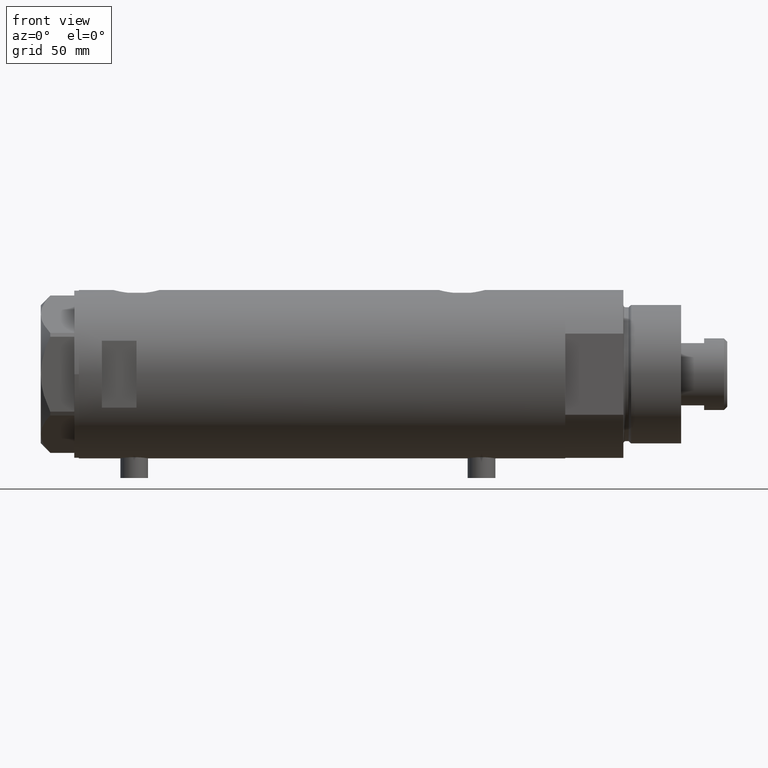
[diagram: clean part render]
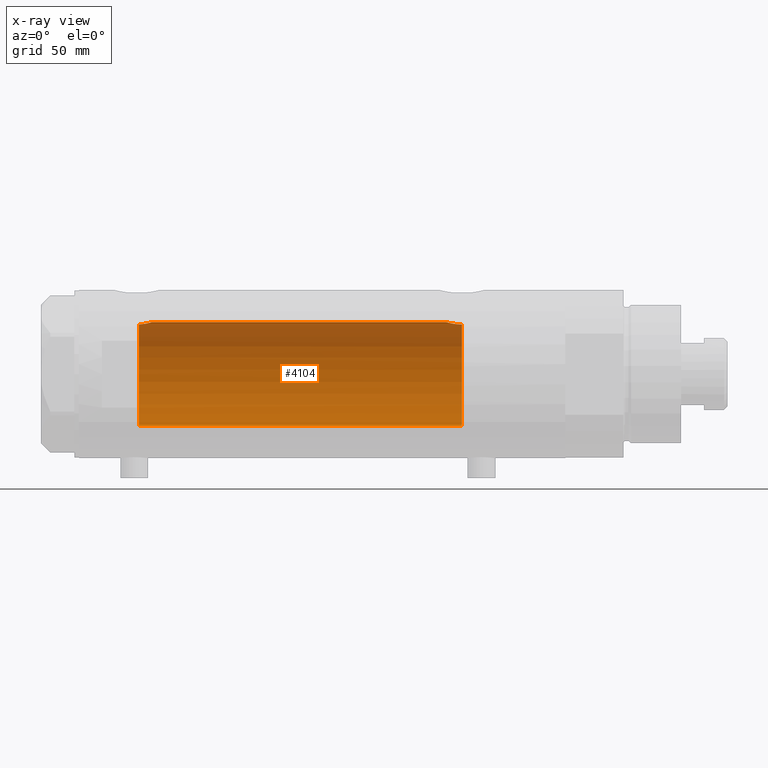
[diagram: x-ray — body ghosted, one internal face saturated and labeled with its STEP entity id]
A machine part, front view, then the same camera in x-ray: the body is ghosted and one INTERNAL B-rep face — a face not visible from any outside direction — is saturated and labeled: STEP entity #4104.
In plain terms, the highlighted cylindrical surface (partial cylindrical patch) has radius 22.5 mm, axis along (1, 0, -0).
Its self-contained STEP definition (entity closure, byte-faithful):
#192 = VECTOR ( 'NONE', #1198, 1000.000000000000000 ) ;
#203 = CARTESIAN_POINT ( 'NONE',  ( 22.43846943857365517, 1.717024460055897483, -54.23305400432137446 ) ) ;
#240 = CARTESIAN_POINT ( 'NONE',  ( 22.30007684883240415, 3.011608117356132652, 74.53690468166831806 ) ) ;
#279 = CARTESIAN_POINT ( 'NONE',  ( 21.85834467356397681, 5.340944334976056140, 76.53736885285051983 ) ) ;
#435 = VERTEX_POINT ( 'NONE', #2886 ) ;
#436 = CARTESIAN_POINT ( 'NONE',  ( 21.51635656889892800, 6.580000000000002736, -60.60000000000000853 ) ) ;
#478 = CARTESIAN_POINT ( 'NONE',  ( 21.94924653817635019, 4.949760619110008975, -56.25922104935666113 ) ) ;
#481 = VERTEX_POINT ( 'NONE', #4319 ) ;
#564 = CARTESIAN_POINT ( 'NONE',  ( 21.70300828301578377, 5.938634204148081963, 77.54008341356919232 ) ) ;
#573 = EDGE_CURVE ( 'NONE', #2142, #1868, #2535, .T. ) ;
#618 = ORIENTED_EDGE ( 'NONE', *, *, #4061, .T. ) ;
#629 = CARTESIAN_POINT ( 'NONE',  ( 21.54850992350583994, 6.473999851071389422, 79.20769989068857342 ) ) ;
#655 = CARTESIAN_POINT ( 'NONE',  ( -22.50000000000000355, 0.000000000000000000, 105.3999999999999915 ) ) ;
#657 = ORIENTED_EDGE ( 'NONE', *, *, #4029, .F. ) ;
#803 = ORIENTED_EDGE ( 'NONE', *, *, #3135, .F. ) ;
#839 = LINE ( 'NONE', #2602, #192 ) ;
#903 = CARTESIAN_POINT ( 'NONE',  ( 21.55996057785741726, 6.435875139617810881, 79.01641692772589920 ) ) ;
#931 = CARTESIAN_POINT ( 'NONE',  ( 21.71097692913351551, 5.908765693315407574, -57.67224774632264683 ) ) ;
#986 = CARTESIAN_POINT ( 'NONE',  ( 0.000000000000000000, 0.000000000000000000, 79.40000000000000568 ) ) ;
#1013 = DIRECTION ( 'NONE',  ( -1.000000000000000000, 0.000000000000000000, 0.000000000000000000 ) ) ;
#1017 = VECTOR ( 'NONE', #2033, 1000.000000000000000 ) ;
#1198 = DIRECTION ( 'NONE',  ( -0.000000000000000000, -0.000000000000000000, -1.000000000000000000 ) ) ;
#1269 = EDGE_LOOP ( 'NONE', ( #2952, #803, #618, #3382, #2854, #657 ) ) ;
#1280 = CARTESIAN_POINT ( 'NONE',  ( 21.58771824211646972, 6.342145538420571604, 78.63591924784432763 ) ) ;
#1308 = CARTESIAN_POINT ( 'NONE',  ( 21.61738790272777422, 6.242481197317901298, -58.47475324290417831 ) ) ;
#1309 = EDGE_CURVE ( 'NONE', #481, #2142, #2374, .T. ) ;
#1330 = CARTESIAN_POINT ( 'NONE',  ( 21.51969523957627928, 6.569111213712933939, -60.16380209493690501 ) ) ;
#1390 = CARTESIAN_POINT ( 'NONE',  ( 21.53958216864942088, 6.503568251352487728, 79.40000000000000568 ) ) ;
#1549 = CARTESIAN_POINT ( 'NONE',  ( 22.50000000000000355, 8.058593785575293352E-16, -54.01999999999999602 ) ) ;
#1590 = AXIS2_PLACEMENT_3D ( 'NONE', #2379, #3041, #1013 ) ;
#1643 = DIRECTION ( 'NONE',  ( 0.000000000000000000, 0.000000000000000000, 1.000000000000000000 ) ) ;
#1659 = CARTESIAN_POINT ( 'NONE',  ( 22.41810768969942202, 1.927264596308561284, 74.10552498238021712 ) ) ;
#1685 = CARTESIAN_POINT ( 'NONE',  ( 21.51635656889892445, 6.580000000000000071, -60.38312317022886333 ) ) ;
#1705 = CARTESIAN_POINT ( 'NONE',  ( 0.000000000000000000, 0.000000000000000000, 105.3999999999999915 ) ) ;
#1850 = CARTESIAN_POINT ( 'NONE',  ( 21.88602906110444124, 5.222191658358661392, -56.59110908501991588 ) ) ;
#1868 = VERTEX_POINT ( 'NONE', #436 ) ;
#1936 = CARTESIAN_POINT ( 'NONE',  ( 22.34487948028763071, 2.662928462767977678, 74.37031008565884349 ) ) ;
#1959 = CARTESIAN_POINT ( 'NONE',  ( 22.20005338163446851, 3.677069589895782808, 74.92964083487821370 ) ) ;
#1965 = CARTESIAN_POINT ( 'NONE',  ( 21.53277870401796790, 6.526097350343573744, -59.73193080670432664 ) ) ;
#2003 = CARTESIAN_POINT ( 'NONE',  ( 21.53958216864942088, 6.503568251352487728, 79.40000000000000568 ) ) ;
#2024 = CARTESIAN_POINT ( 'NONE',  ( 22.40112435233285026, 2.115025885874704414, 74.16613662186026090 ) ) ;
#2031 = DIRECTION ( 'NONE',  ( -0.000000000000000000, -0.000000000000000000, -1.000000000000000000 ) ) ;
#2033 = DIRECTION ( 'NONE',  ( -0.000000000000000000, -0.000000000000000000, -1.000000000000000000 ) ) ;
#2142 = VERTEX_POINT ( 'NONE', #3084 ) ;
#2308 = CARTESIAN_POINT ( 'NONE',  ( 22.50000000000000000, 0.3947970979781458833, 73.81999999999997897 ) ) ;
#2352 = CARTESIAN_POINT ( 'NONE',  ( 21.54248662244912893, 6.494090541481658541, -59.51861175082141386 ) ) ;
#2374 = LINE ( 'NONE', #655, #1017 ) ;
#2379 = CARTESIAN_POINT ( 'NONE',  ( 0.000000000000000000, 0.000000000000000000, -60.60000000000001563 ) ) ;
#2535 = CIRCLE ( 'NONE', #1590, 22.50000000000000355 ) ;
#2602 = CARTESIAN_POINT ( 'NONE',  ( 22.50000000000000355, 2.755455298081545172E-15, 105.3999999999999915 ) ) ;
#2644 = CARTESIAN_POINT ( 'NONE',  ( 22.07793805162484091, 4.348669293362737776, -55.64321183416396366 ) ) ;
#2661 = CARTESIAN_POINT ( 'NONE',  ( 22.48961798642637788, 0.7839168256130882861, 73.85525408827135152 ) ) ;
#2668 = CARTESIAN_POINT ( 'NONE',  ( 21.51635656889892800, 6.580000000000002736, -60.60000000000000853 ) ) ;
#2681 = CARTESIAN_POINT ( 'NONE',  ( 21.60406082673096506, 6.286405977953739566, 78.44666670735803393 ) ) ;
#2712 = B_SPLINE_CURVE_WITH_KNOTS ( 'NONE', 3,
 ( #1549, #3310, #2986, #203, #2963, #4369, #3671, #4349, #2644, #4030, #478, #1850, #3242, #3754, #931, #1308, #4090, #2352, #1965, #1330, #1685, #2668 ),
 .UNSPECIFIED., .F., .F.,
 ( 4, 2, 2, 2, 2, 2, 2, 2, 2, 2, 4 ),
 ( 0.02068572879290662969, 0.02197833177876013649, 0.02327093476461364330, 0.02456353775046714663, 0.02585614073632065343, 0.02650244222924739990, 0.02714874372217414636, 0.02844134670802765663, 0.02973394969388116690, 0.03038025118680792031, 0.03102655267973467718 ),
 .UNSPECIFIED. ) ;
#2714 = AXIS2_PLACEMENT_3D ( 'NONE', #1705, #2031, #3096 ) ;
#2854 = ORIENTED_EDGE ( 'NONE', *, *, #573, .T. ) ;
#2886 = CARTESIAN_POINT ( 'NONE',  ( 22.50000000000000355, 0.000000000000000000, 73.81999999999999318 ) ) ;
#2925 = VERTEX_POINT ( 'NONE', #1390 ) ;
#2952 = ORIENTED_EDGE ( 'NONE', *, *, #4001, .F. ) ;
#2963 = CARTESIAN_POINT ( 'NONE',  ( 22.40265168709897736, 2.128491761919765857, -54.35897789146818582 ) ) ;
#2979 = CARTESIAN_POINT ( 'NONE',  ( 22.45973433770729599, 1.359115216171842055, 73.95894713662335107 ) ) ;
#2986 = CARTESIAN_POINT ( 'NONE',  ( 22.48752745446833146, 0.8626660575027236266, -54.06226479722904088 ) ) ;
#3011 = CIRCLE ( 'NONE', #4237, 22.50000000000000355 ) ;
#3041 = DIRECTION ( 'NONE',  ( 0.000000000000000000, 0.000000000000000000, -1.000000000000000000 ) ) ;
#3047 = CARTESIAN_POINT ( 'NONE',  ( 22.44738562510071844, 1.549445000368398828, 74.00203276325540003 ) ) ;
#3084 = CARTESIAN_POINT ( 'NONE',  ( -22.50000000000000355, 0.000000000000000000, -60.60000000000001563 ) ) ;
#3096 = DIRECTION ( 'NONE',  ( -1.000000000000000000, 0.000000000000000000, 0.000000000000000000 ) ) ;
#3135 = EDGE_CURVE ( 'NONE', #2925, #435, #3756, .T. ) ;
#3242 = CARTESIAN_POINT ( 'NONE',  ( 21.85514244747244561, 5.349553529053611811, -56.76278474480277936 ) ) ;
#3310 = CARTESIAN_POINT ( 'NONE',  ( 22.50000000000000711, 0.4308769323960447983, -54.01999999999999602 ) ) ;
#3351 = CARTESIAN_POINT ( 'NONE',  ( 21.97198143592078878, 4.852313884858205917, 75.93898489903314442 ) ) ;
#3382 = ORIENTED_EDGE ( 'NONE', *, *, #1309, .T. ) ;
#3393 = CARTESIAN_POINT ( 'NONE',  ( 21.80257506594835704, 5.561983929949494865, 76.86293428743493905 ) ) ;
#3397 = FACE_OUTER_BOUND ( 'NONE', #1269, .T. ) ;
#3410 = CARTESIAN_POINT ( 'NONE',  ( 22.03020271031500954, 4.583618747547686390, 75.66326305060309210 ) ) ;
#3671 = CARTESIAN_POINT ( 'NONE',  ( 22.25860915731085754, 3.306748059303232345, -54.89512753277104196 ) ) ;
#3685 = CARTESIAN_POINT ( 'NONE',  ( 22.50000000000000355, 0.000000000000000000, 73.81999999999999318 ) ) ;
#3706 = CARTESIAN_POINT ( 'NONE',  ( 21.65875036540690957, 6.096384986856007160, 77.89350157007415021 ) ) ;
#3754 = CARTESIAN_POINT ( 'NONE',  ( 21.76592257976931677, 5.705656113855378742, -57.29484284637811697 ) ) ;
#3756 = B_SPLINE_CURVE_WITH_KNOTS ( 'NONE', 3,
 ( #2003, #629, #903, #1280, #2681, #3706, #564, #3393, #279, #3351, #3410, #4086, #1959, #240, #1936, #2024, #1659, #3047, #2979, #2661, #2308, #3685 ),
 .UNSPECIFIED., .F., .F.,
 ( 4, 2, 2, 2, 2, 2, 2, 2, 2, 2, 4 ),
 ( 0.03202894702871424137, 0.03261250414633483363, 0.03319606126395543283, 0.03436317549919665898, 0.03553028973443789207, 0.03669740396967911822, 0.03786451820492034437, 0.03903163244016157052, 0.03961518955778218359, 0.04019874667540278973, 0.04136586091064399506 ),
 .UNSPECIFIED. ) ;
#3958 = CARTESIAN_POINT ( 'NONE',  ( 22.50000000000000355, 8.058593785575293352E-16, -54.01999999999999602 ) ) ;
#4001 = EDGE_CURVE ( 'NONE', #435, #4276, #839, .T. ) ;
#4029 = EDGE_CURVE ( 'NONE', #4276, #1868, #2712, .T. ) ;
#4030 = CARTESIAN_POINT ( 'NONE',  ( 21.98170506496023791, 4.804030677015551198, -56.09847163284563010 ) ) ;
#4061 = EDGE_CURVE ( 'NONE', #2925, #481, #3011, .T. ) ;
#4069 = CYLINDRICAL_SURFACE ( 'NONE', #2714, 22.50000000000000355 ) ;
#4086 = CARTESIAN_POINT ( 'NONE',  ( 22.14421896774457466, 3.996618394220603498, 75.15850411031065903 ) ) ;
#4090 = CARTESIAN_POINT ( 'NONE',  ( 21.58039466125149985, 6.367443256290044928, -58.88625661091906238 ) ) ;
#4104 = ADVANCED_FACE ( 'NONE', ( #3397 ), #4069, .F. ) ;
#4109 = DIRECTION ( 'NONE',  ( 1.000000000000000000, 0.000000000000000000, 0.000000000000000000 ) ) ;
#4237 = AXIS2_PLACEMENT_3D ( 'NONE', #986, #1643, #4109 ) ;
#4276 = VERTEX_POINT ( 'NONE', #3958 ) ;
#4319 = CARTESIAN_POINT ( 'NONE',  ( -22.50000000000000355, 0.000000000000000000, 79.40000000000000568 ) ) ;
#4349 = CARTESIAN_POINT ( 'NONE',  ( 22.14109776314136369, 4.018961829707391686, -55.37237162697962845 ) ) ;
#4369 = CARTESIAN_POINT ( 'NONE',  ( 22.31307373663815952, 2.921646833104069696, -54.68858613169775396 ) ) ;